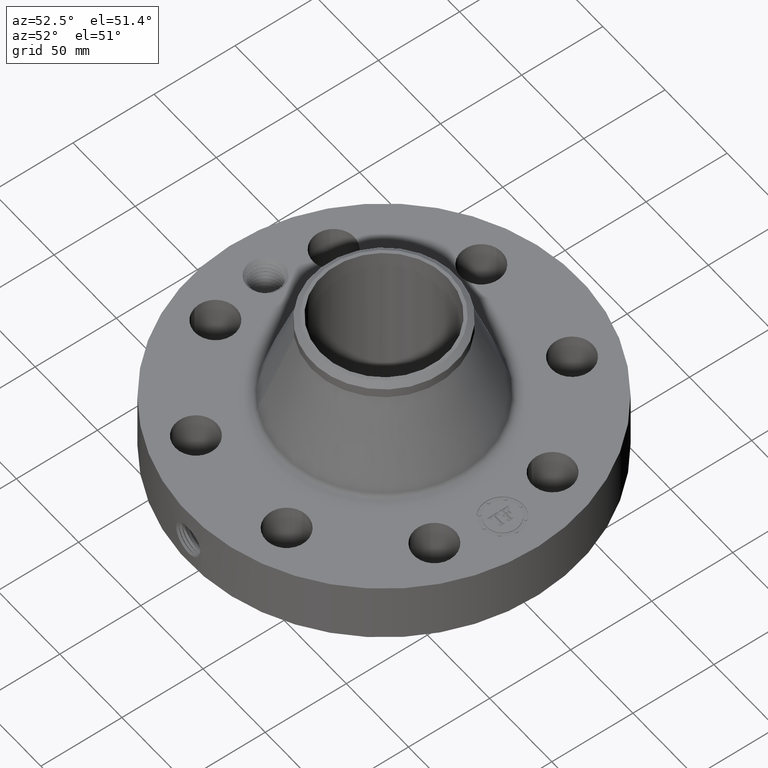
[diagram: clean part render]
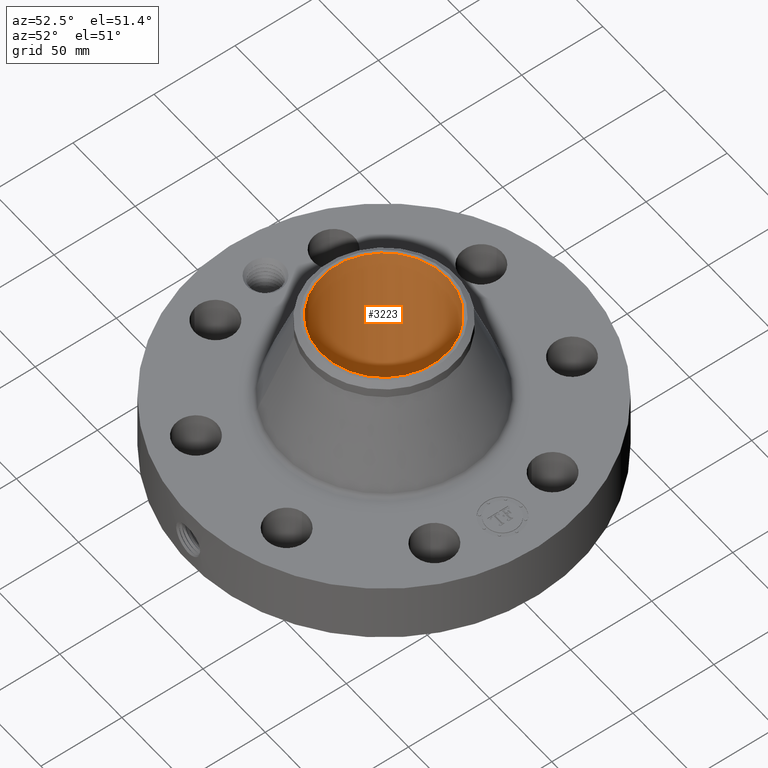
[diagram: same view with one face highlighted and labeled with its STEP entity id]
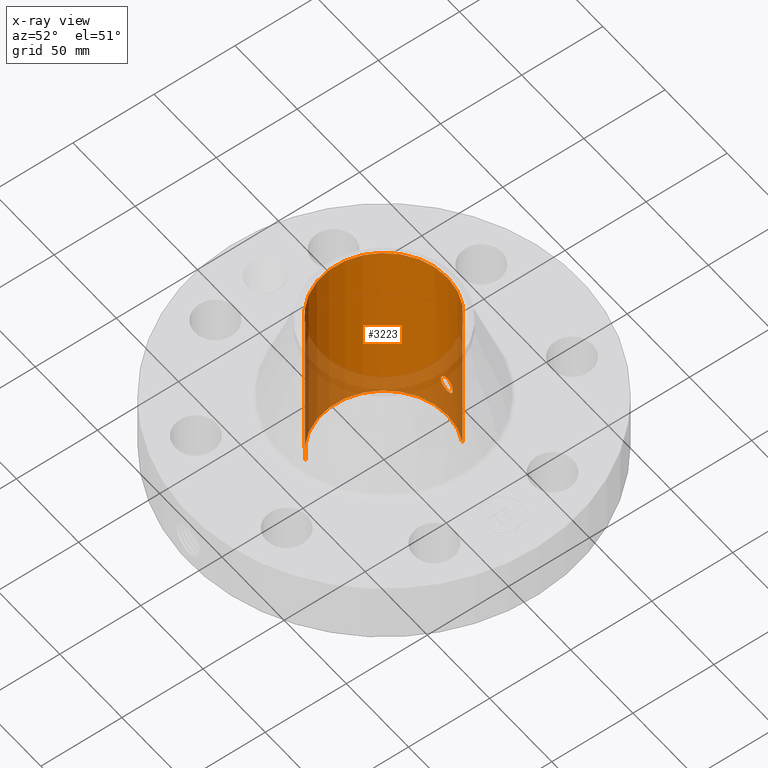
[diagram: x-ray of the same camera — body ghosted, the highlighted face saturated]
A machine part, auxiliary view. The second image highlights one B-rep face of the part: STEP entity #3223.
The next image is the same camera in x-ray: the body ghosted, the highlighted face saturated — about 28% of this face is hidden behind the body in this view.
In plain terms, the highlighted cylindrical surface (partial cylindrical patch) has radius 38.9636 mm, axis along (0, 0, -1).
Its self-contained STEP definition (entity closure, byte-faithful):
#2341=AXIS2_PLACEMENT_3D('Circle Axis2P3D',#2339,#2340,$) ;
#3100=AXIS2_PLACEMENT_3D('Cylinder Axis2P3D',#3097,#3098,#3099) ;
#3172=AXIS2_PLACEMENT_3D('Circle Axis2P3D',#3170,#3171,$) ;
#2334=CARTESIAN_POINT('Vertex',(0.735438776222,1.34621164995,-2.79741234551E-015)) ;
#2336=CARTESIAN_POINT('Vertex',(-0.735438776222,-1.34621164995,-2.79741234551E-015)) ;
#2339=CARTESIAN_POINT('Axis2P3D Location',(0.,0.,0.)) ;
#3097=CARTESIAN_POINT('Axis2P3D Location',(0.,0.,2.12500000001)) ;
#3106=CARTESIAN_POINT('Vertex',(0.735438776222,1.34621164995,4.25000000002)) ;
#3108=CARTESIAN_POINT('Vertex',(-0.735438776222,-1.34621164995,4.25000000002)) ;
#3111=CARTESIAN_POINT('Line Origine',(0.735438776222,1.34621164995,2.12500000001)) ;
#3116=CARTESIAN_POINT('Line Origine',(-0.735438776222,-1.34621164995,2.12500000001)) ;
#3170=CARTESIAN_POINT('Axis2P3D Location',(0.,0.,4.25000000002)) ;
#3182=CARTESIAN_POINT('Control Point',(0.164546730355,1.52514929549,1.02989228849)) ;
#3183=CARTESIAN_POINT('Control Point',(0.153730987737,1.52631619443,1.04969037256)) ;
#3184=CARTESIAN_POINT('Control Point',(0.139943198887,1.52770675216,1.06785160915)) ;
#3185=CARTESIAN_POINT('Control Point',(0.123507748975,1.52917958204,1.08379188796)) ;
#3186=CARTESIAN_POINT('Control Point',(0.0771300553368,1.53257507292,1.11681265248)) ;
#3187=CARTESIAN_POINT('Control Point',(0.0211174569579,1.53443807468,1.13100247168)) ;
#3188=CARTESIAN_POINT('Control Point',(-0.0139156713045,1.53452842349,1.13166348665)) ;
#3189=CARTESIAN_POINT('Control Point',(-0.0704492146754,1.53291709887,1.11958376252)) ;
#3190=CARTESIAN_POINT('Control Point',(-0.118051609549,1.52962023944,1.08830865568)) ;
#3191=CARTESIAN_POINT('Control Point',(-0.135083668782,1.52815406454,1.07297980439)) ;
#3192=CARTESIAN_POINT('Control Point',(-0.174443725811,1.52429835588,1.0249543532)) ;
#3193=CARTESIAN_POINT('Control Point',(-0.192228358512,1.52190251018,0.963988821441)) ;
#3194=CARTESIAN_POINT('Control Point',(-0.1929898306,1.52179279367,0.92317256888)) ;
#3195=CARTESIAN_POINT('Control Point',(-0.183177815638,1.52313920758,0.884211684367)) ;
#3196=CARTESIAN_POINT('Control Point',(-0.164546730355,1.52514929549,0.850107711515)) ;
#3197=CARTESIAN_POINT('Vertex',(0.164546730355,1.52514929549,1.02989228849)) ;
#3199=CARTESIAN_POINT('Vertex',(-0.164546730355,1.52514929549,0.850107711515)) ;
#3203=CARTESIAN_POINT('Control Point',(-0.164546730355,1.52514929549,0.850107711515)) ;
#3204=CARTESIAN_POINT('Control Point',(-0.153730987743,1.52631619443,0.830309627462)) ;
#3205=CARTESIAN_POINT('Control Point',(-0.139943198901,1.52770675216,0.812148390877)) ;
#3206=CARTESIAN_POINT('Control Point',(-0.123507748953,1.52917958204,0.79620811203)) ;
#3207=CARTESIAN_POINT('Control Point',(-0.0771300553221,1.53257507292,0.763187347526)) ;
#3208=CARTESIAN_POINT('Control Point',(-0.021117456955,1.53443807468,0.74899752833)) ;
#3209=CARTESIAN_POINT('Control Point',(0.0139156713087,1.53452842349,0.74833651336)) ;
#3210=CARTESIAN_POINT('Control Point',(0.0704492146903,1.53291709887,0.760416237496)) ;
#3211=CARTESIAN_POINT('Control Point',(0.118051609571,1.52962023944,0.791691344341)) ;
#3212=CARTESIAN_POINT('Control Point',(0.135083668771,1.52815406454,0.807020195605)) ;
#3213=CARTESIAN_POINT('Control Point',(0.174443725804,1.52429835588,0.855045646796)) ;
#3214=CARTESIAN_POINT('Control Point',(0.192228358509,1.52190251018,0.916011178556)) ;
#3215=CARTESIAN_POINT('Control Point',(0.192989830596,1.52179279367,0.956827431143)) ;
#3216=CARTESIAN_POINT('Control Point',(0.183177815634,1.52313920758,0.995788315647)) ;
#3217=CARTESIAN_POINT('Control Point',(0.164546730355,1.52514929549,1.02989228849)) ;
#2340=DIRECTION('Axis2P3D Direction',(0.,0.,-0.0393700787402)) ;
#3098=DIRECTION('Axis2P3D Direction',(0.,0.,-0.0393700787402)) ;
#3099=DIRECTION('Axis2P3D XDirection',(-0.0188750212049,-0.0345504945626,0.)) ;
#3112=DIRECTION('Vector Direction',(0.,0.,-0.0393700787402)) ;
#3117=DIRECTION('Vector Direction',(0.,0.,-0.0393700787402)) ;
#3171=DIRECTION('Axis2P3D Direction',(0.,0.,-0.0393700787402)) ;
#3113=VECTOR('Line Direction',#3112,0.0393700787402) ;
#3118=VECTOR('Line Direction',#3117,0.0393700787402) ;
#3176=ORIENTED_EDGE('',*,*,#3174,.F.) ;
#3177=ORIENTED_EDGE('',*,*,#3120,.T.) ;
#3178=ORIENTED_EDGE('',*,*,#2343,.T.) ;
#3179=ORIENTED_EDGE('',*,*,#3115,.F.) ;
#3220=ORIENTED_EDGE('',*,*,#3201,.F.) ;
#3221=ORIENTED_EDGE('',*,*,#3218,.F.) ;
#3222=FACE_BOUND('',#3219,.T.) ;
#3223=ADVANCED_FACE('PartBody',(#3180,#3222),#3101,.F.) ;
#3181=B_SPLINE_CURVE_WITH_KNOTS('',5,(#3182,#3183,#3184,#3185,#3186,#3187,#3188,#3189,#3190,#3191,#3192,#3193,#3194,#3195,#3196),.UNSPECIFIED.,.F.,.U.,(6,3,3,3,6),(0.,4.05727166183,10.1291862392,14.1895477963,21.17856159),.UNSPECIFIED.) ;
#3202=B_SPLINE_CURVE_WITH_KNOTS('',5,(#3203,#3204,#3205,#3206,#3207,#3208,#3209,#3210,#3211,#3212,#3213,#3214,#3215,#3216,#3217),.UNSPECIFIED.,.F.,.U.,(6,3,3,3,6),(0.,4.05727165973,10.129186237,14.1895477962,21.1785615885),.UNSPECIFIED.) ;
#2342=CIRCLE('generated circle',#2341,1.53400000001) ;
#3173=CIRCLE('generated circle',#3172,1.53400000001) ;
#3101=CYLINDRICAL_SURFACE('generated cylinder',#3100,1.53400000001) ;
#2343=EDGE_CURVE('',#2337,#2335,#2342,.T.) ;
#3115=EDGE_CURVE('',#3107,#2335,#3114,.T.) ;
#3120=EDGE_CURVE('',#3109,#2337,#3119,.T.) ;
#3174=EDGE_CURVE('',#3109,#3107,#3173,.T.) ;
#3201=EDGE_CURVE('',#3198,#3200,#3181,.T.) ;
#3218=EDGE_CURVE('',#3200,#3198,#3202,.T.) ;
#3175=EDGE_LOOP('',(#3176,#3177,#3178,#3179)) ;
#3219=EDGE_LOOP('',(#3220,#3221)) ;
#3180=FACE_OUTER_BOUND('',#3175,.T.) ;
#3114=LINE('Line',#3111,#3113) ;
#3119=LINE('Line',#3116,#3118) ;
#2335=VERTEX_POINT('',#2334) ;
#2337=VERTEX_POINT('',#2336) ;
#3107=VERTEX_POINT('',#3106) ;
#3109=VERTEX_POINT('',#3108) ;
#3198=VERTEX_POINT('',#3197) ;
#3200=VERTEX_POINT('',#3199) ;